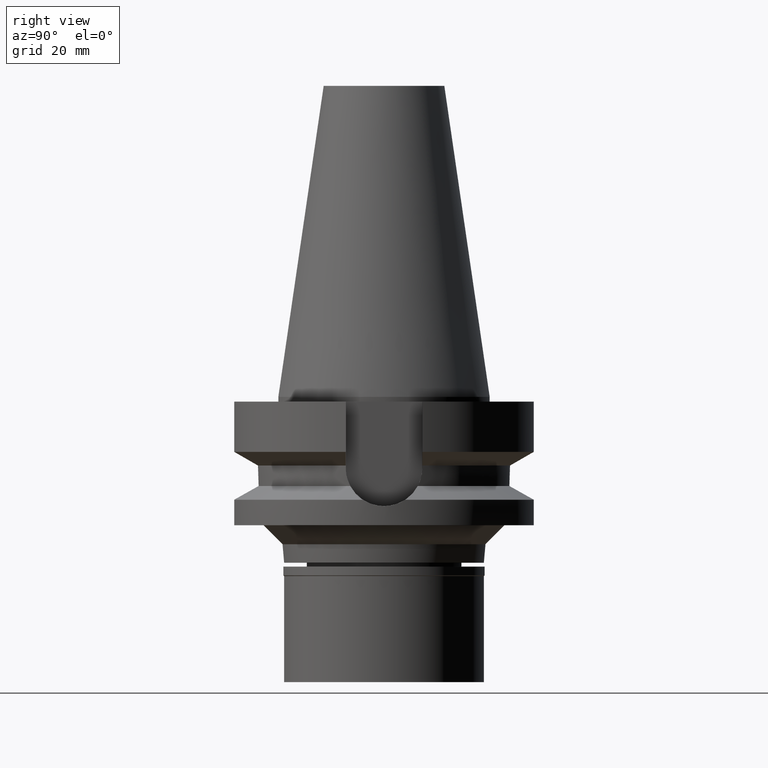
[diagram: clean part render]
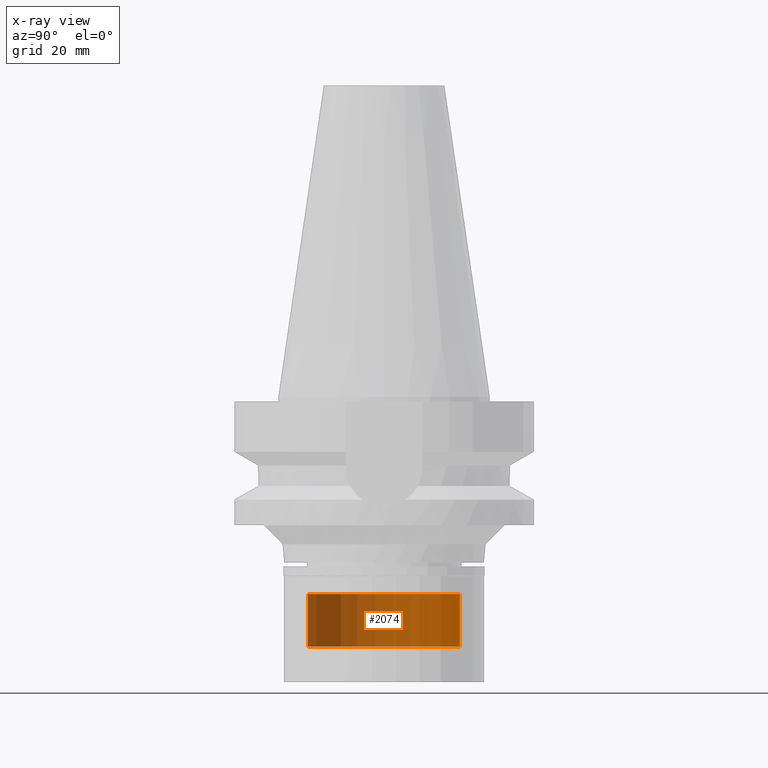
[diagram: x-ray — body ghosted, one internal face saturated and labeled with its STEP entity id]
A machine part, right view, then the same camera in x-ray: the body is ghosted and one INTERNAL B-rep face — a face not visible from any outside direction — is saturated and labeled: STEP entity #2074.
In plain terms, the highlighted cylindrical surface (partial cylindrical patch) has radius 16 mm, axis along (0, 0, -1).
Its self-contained STEP definition (entity closure, byte-faithful):
#78 = DIRECTION ( 'NONE',  ( 0.0000000000000000000, 0.0000000000000000000, 1.000000000000000000 ) ) ;
#140 = LINE ( 'NONE', #797, #1430 ) ;
#324 = CARTESIAN_POINT ( 'NONE',  ( 0.0000000000000000000, 2.097758734598999898E-14, -52.50000000000000000 ) ) ;
#634 = DIRECTION ( 'NONE',  ( 0.0000000000000000000, -1.000000000000000000, 0.0000000000000000000 ) ) ;
#797 = CARTESIAN_POINT ( 'NONE',  ( 0.0000000000000000000, 16.00000000000000000, -41.50000000000000000 ) ) ;
#898 = CARTESIAN_POINT ( 'NONE',  ( 0.0000000000000000000, 2.097758734598999898E-14, 71.29500000000000171 ) ) ;
#915 = CARTESIAN_POINT ( 'NONE',  ( 0.0000000000000000000, -16.00000000000000000, -41.50000000000000000 ) ) ;
#916 = VERTEX_POINT ( 'NONE', #1453 ) ;
#1000 = CARTESIAN_POINT ( 'NONE',  ( 0.0000000000000000000, -16.00000000000000000, -41.50000000000000000 ) ) ;
#1148 = FACE_OUTER_BOUND ( 'NONE', #1845, .T. ) ;
#1240 = ORIENTED_EDGE ( 'NONE', *, *, #2926, .F. ) ;
#1241 = CARTESIAN_POINT ( 'NONE',  ( 0.0000000000000000000, 2.097758734598999898E-14, -41.50000000000000000 ) ) ;
#1294 = DIRECTION ( 'NONE',  ( 0.0000000000000000000, 0.0000000000000000000, -1.000000000000000000 ) ) ;
#1430 = VECTOR ( 'NONE', #1294, 1000.000000000000000 ) ;
#1453 = CARTESIAN_POINT ( 'NONE',  ( 0.0000000000000000000, -16.00000000000000000, -52.50000000000000000 ) ) ;
#1467 = EDGE_CURVE ( 'NONE', #2156, #916, #2237, .T. ) ;
#1500 = ORIENTED_EDGE ( 'NONE', *, *, #1467, .T. ) ;
#1606 = DIRECTION ( 'NONE',  ( 0.0000000000000000000, 0.0000000000000000000, -1.000000000000000000 ) ) ;
#1830 = AXIS2_PLACEMENT_3D ( 'NONE', #324, #78, #2453 ) ;
#1831 = VERTEX_POINT ( 'NONE', #2148 ) ;
#1845 = EDGE_LOOP ( 'NONE', ( #1500, #1240, #2619, #3039 ) ) ;
#1896 = DIRECTION ( 'NONE',  ( 0.0000000000000000000, 0.0000000000000000000, -1.000000000000000000 ) ) ;
#1939 = CARTESIAN_POINT ( 'NONE',  ( 0.0000000000000000000, 16.00000000000000000, -52.50000000000000000 ) ) ;
#1967 = DIRECTION ( 'NONE',  ( 0.0000000000000000000, -1.000000000000000000, 0.0000000000000000000 ) ) ;
#2074 = ADVANCED_FACE ( 'NONE', ( #1148 ), #2100, .T. ) ;
#2100 = CYLINDRICAL_SURFACE ( 'NONE', #2839, 16.00000000000000000 ) ;
#2134 = AXIS2_PLACEMENT_3D ( 'NONE', #1241, #2896, #1967 ) ;
#2148 = CARTESIAN_POINT ( 'NONE',  ( 0.0000000000000000000, 16.00000000000000000, -41.50000000000000000 ) ) ;
#2156 = VERTEX_POINT ( 'NONE', #1939 ) ;
#2237 = CIRCLE ( 'NONE', #1830, 16.00000000000000000 ) ;
#2354 = VERTEX_POINT ( 'NONE', #1000 ) ;
#2414 = EDGE_CURVE ( 'NONE', #1831, #2156, #140, .T. ) ;
#2428 = VECTOR ( 'NONE', #1896, 1000.000000000000000 ) ;
#2453 = DIRECTION ( 'NONE',  ( 0.0000000000000000000, 1.000000000000000000, 0.0000000000000000000 ) ) ;
#2619 = ORIENTED_EDGE ( 'NONE', *, *, #2986, .T. ) ;
#2839 = AXIS2_PLACEMENT_3D ( 'NONE', #898, #1606, #634 ) ;
#2896 = DIRECTION ( 'NONE',  ( 0.0000000000000000000, 0.0000000000000000000, -1.000000000000000000 ) ) ;
#2926 = EDGE_CURVE ( 'NONE', #2354, #916, #3060, .T. ) ;
#2986 = EDGE_CURVE ( 'NONE', #2354, #1831, #3026, .T. ) ;
#3026 = CIRCLE ( 'NONE', #2134, 16.00000000000000000 ) ;
#3039 = ORIENTED_EDGE ( 'NONE', *, *, #2414, .T. ) ;
#3060 = LINE ( 'NONE', #915, #2428 ) ;